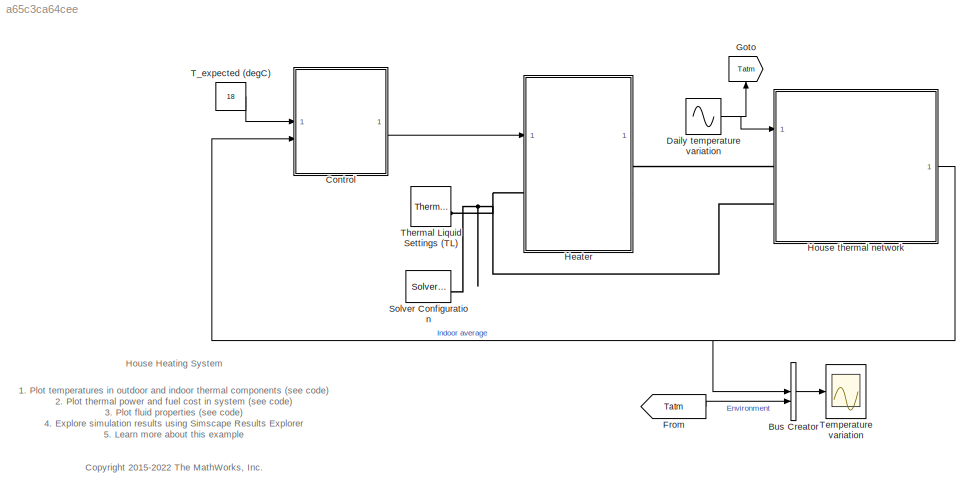
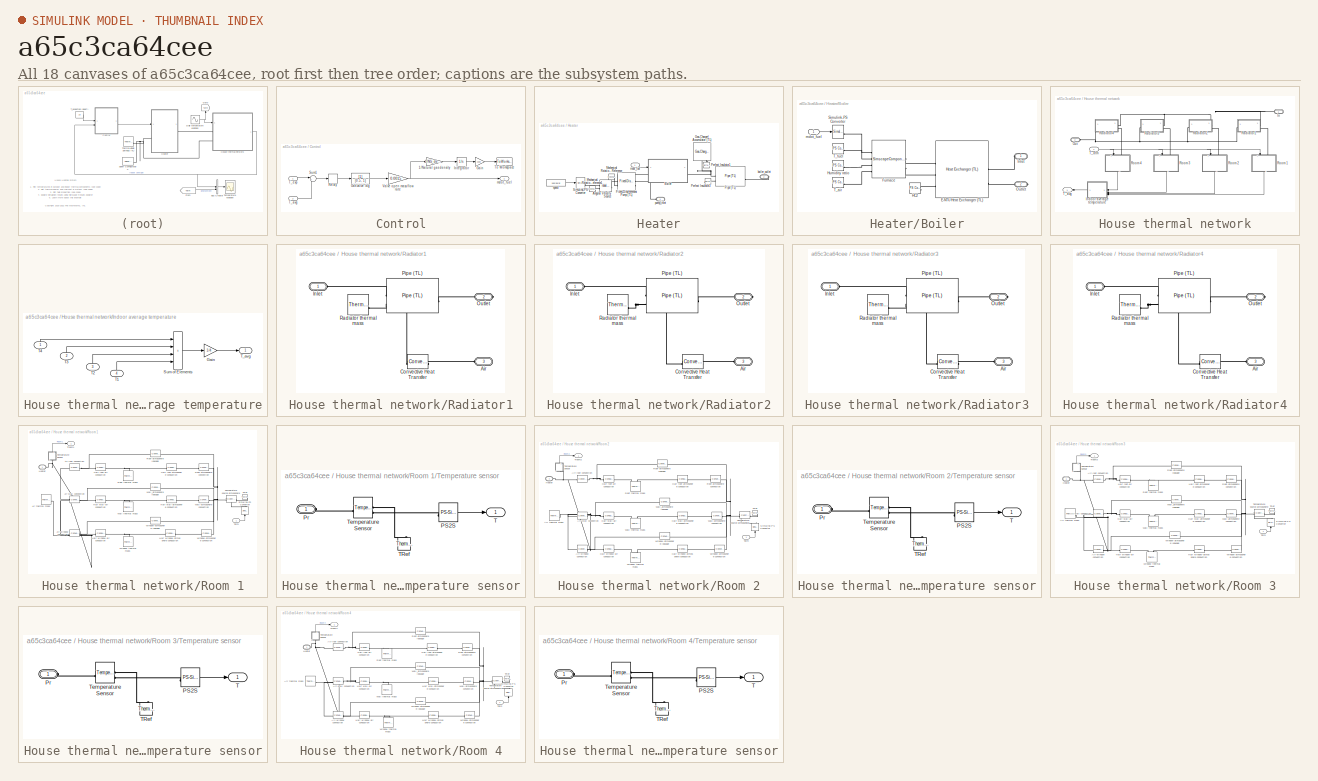
[diagram: thumbnail index - all 18 canvases of the model, root first then tree order]
MODEL slx_a65c3ca64cee
KIND model
CONFIG AbsTol = 1e-3
CONFIG EnableMultiTasking = on
CONFIG FixedStep = 1
CONFIG InitFcn = % Roof\nroofArea =  2* (widHouse/(2*cos(pitRoof))*lenHouse);\n\n%Rooms\n%% Room 1\narea_window_room1 = 3 * 1 *1;\narea_wall_room1 = (lenHouse*3/5 *htHouse+widHouse*2/3*htHouse) - area_window_room1;\narea_roof_room1 = roofArea/4;\n\n%% Room 2\narea_window_room2 = 2 * 1 *1;\narea_wall_room2 = (lenHouse*3/5*htHouse+widHouse/3*htHouse) - area_window_room2;\narea_roof_room2 = roofArea/4;\n\n%% Room 3\narea_window_roo...<+507ch>
CONFIG MaxStep = auto
CONFIG MinStep = auto
CONFIG PreLoadFcn = % Walls\nlenHouse   = 30;          % House length [m]\nwidHouse   = 10;          % House width [m]\nhtHouse     = 4;            % House height [m]\nLWall           = 0.2;         % Wall thickness [m]\nwallDensity = 1920;      % Density [kg/m^3]\nc_wall          = 835;        % Specific heat [J/kg/K]\nkWall            = 0.038;    % Thermal conductivity [W/m/K]\n\n% Windows\nn1_window       = 3;          % Nu...<+1775ch>
CONFIG RelTol = 1e-3
CONFIG SampleTimeConstraint = Unconstrained
CONFIG SolverName = VariableStepAuto
CONFIG StartTime = 0.0
CONFIG StopTime = 3600*50
BLOCK [BusCreator] Bus Creator
  DisplayOption = bar
  InheritFromInputs = on
  Inputs = 2
BLOCK [SubSystem] Control
BLOCK [Gain] Control/1//Natural gas density
  Gain = 1/NG_density
  OutDataTypeStr = Inherit: Same as input
  ParamDataTypeStr = Inherit: Same as input
  SaturateOnIntegerOverflow = on
BLOCK [Gain] Control/Gain
  Gain = cost
BLOCK [TransferFcn] Control/Gas valve lag
  Denominator = [0.5, 1]
BLOCK [Integrator] Control/Integrator
  NameLocation = top
BLOCK [Relay] Control/Relay
  OffSwitchValue = -2
  OnSwitchValue = 2
BLOCK [Sum] Control/Sum1
  Inputs = |+-
  NameLocation = top
BLOCK [Inport] Control/T_avg
  NameLocation = top
  Port = 2
BLOCK [Inport] Control/T_exp
BLOCK [ToWorkspace] Control/To Workspace
  FixptAsFi = on
  MaxDataPoints = inf
  SampleTime = -1
  VariableName = fuel_cost
BLOCK [Gain] Control/Valve open mass flow rate
  Gain = 0.0015
  OutDataTypeStr = Inherit: Same as input
  ParamDataTypeStr = Inherit: Same as input
  SaturateOnIntegerOverflow = on
BLOCK [Outport] Control/mdot_fuel
  VectorParamsAs1DForOutWhenUnconnected = off
BLOCK [Sin] Daily temperature variation
  Amplitude = 6
  Bias = 12
  Frequency = 2*pi/(12*3600)
  SampleTime = 0
BLOCK [From] From
  GotoTag = Tatm
BLOCK [Goto] Goto
  GotoTag = Tatm
  NameLocation = right
BLOCK [SubSystem] Heater
BLOCK [Reference] Heater/Angular Velocity Source  REF=fl_lib/Mechanical/Mechanical Sources/Ideal Angular
Velocity Source
  SourceBlock = fl_lib/Mechanical/Mechanical Sources/Ideal Angular\nVelocity Source
  SourceType = Ideal Angular\nVelocity Source
BLOCK [SubSystem] Heater/Boiler
BLOCK [Reference] Heater/Boiler/E-NTU Heat Exchanger (TL)  REF=SimscapeFluids_lib/Fluid Network
Interfaces/Heat Exchangers/Heat Exchanger (TL)
  SourceBlock = SimscapeFluids_lib/Fluid Network\nInterfaces/Heat Exchangers/Heat Exchanger (TL)
  SourceType = Heat Exchanger (TL)
BLOCK [SimscapeComponentBlock] Heater/Boiler/Furnace
  ClassName = furnace
  ComponentPath = furnace
  ComponentVariantNames = furnace
  ComponentVariants = furnace
  CopyFcn = simscape.engine.sli.internal.componentblockcallback(gcbh,'COPY')
  InternalSimscapePortConfiguration = {"Bottom":[],"Left":[{"id":"Mdot_fuel","label":"MF","type":"input"},{"id":"T_fuel","label":"TF","type":"input"},{"id":"Humid_ratio","label":"HR","type":"input"},{"id":"T_air","label":"TS","type":"input"}],"Right":[{"id":"H","label":"H","type":"foundation.thermal.thermal"},{"id":"C_exh","label":"C_exh","type":"output"}],"Top":[]}
  LHV = 41e6
  LHV_conf = compiletime
  LHV_unit = J/kg
  MaskDisplay = color('red');plot([0 1 1 0 0],[0 0 1 1 0]);plot([0.7,1],[1,0.7]);plot(-2,-1.75);plot(3, 1);disp('\n.ssc\nUnresolved')
  MaskType = Furnace
  PreCopyFcn = simscape.engine.sli.internal.componentblockcallback(gcbh,'PRECOPY')
  PreDeleteFcn = simscape.engine.sli.internal.componentblockcallback(gcbh,'PREDELETE')
  SchemaVersion = 1
  SourceFile = furnace
  cp_air = 1005
  cp_air_conf = compiletime
  cp_air_unit = J/kg/K
  cp_fuel = 1880
  cp_fuel_conf = compiletime
  cp_fuel_unit = J/kg/K
  cp_vapor = 1820
  cp_vapor_conf = compiletime
  cp_vapor_unit = J/kg/K
  excess_air = 0.1
  excess_air_conf = compiletime
  excess_air_unit = 1
  mdot_fuel_min = 1e-5
  mdot_fuel_min_conf = compiletime
  mdot_fuel_min_unit = kg/s
  n = 3.95
  n_conf = compiletime
  n_unit = 1
BLOCK [Reference] Heater/Boiler/HC2  REF=fl_lib/Physical Signals/Sources/PS Constant
  SourceBlock = fl_lib/Physical Signals/Sources/PS Constant
  SourceType = PS Constant
BLOCK [Reference] Heater/Boiler/Humidity ratio  REF=fl_lib/Physical Signals/Sources/PS Constant
  SourceBlock = fl_lib/Physical Signals/Sources/PS Constant
  SourceType = PS Constant
BLOCK [PMIOPort] Heater/Boiler/Inlet
  Side = Left
BLOCK [PMIOPort] Heater/Boiler/Outlet
  Port = 2
  Side = Right
BLOCK [Reference] Heater/Boiler/Simulink-PS Converter  REF=nesl_utility/Simulink-PS
Converter
  SourceBlock = nesl_utility/Simulink-PS\nConverter
  SourceType = Simulink-PS\nConverter
BLOCK [Reference] Heater/Boiler/T_air  REF=fl_lib/Physical Signals/Sources/PS Constant
  SourceBlock = fl_lib/Physical Signals/Sources/PS Constant
  SourceType = PS Constant
BLOCK [Reference] Heater/Boiler/T_fuel  REF=fl_lib/Physical Signals/Sources/PS Constant
  SourceBlock = fl_lib/Physical Signals/Sources/PS Constant
  SourceType = PS Constant
BLOCK [Inport] Heater/Boiler/mdot_fuel
BLOCK [Reference] Heater/Fixed-Displacement Pump (TL)  REF=SimscapeFluids_lib/Thermal Liquid/Pumps & Motors/Fixed-Displacement
Pump (TL)
  SourceBlock = SimscapeFluids_lib/Thermal Liquid/Pumps & Motors/Fixed-Displacement\nPump (TL)
  SourceType = Fixed-Displacement\nPump (TL)
BLOCK [Reference] Heater/Gas-Charged Accumulator (TL)  REF=SimscapeFluids_lib/Thermal Liquid/Tanks & Accumulators/Gas-Charged
Accumulator (TL)
  NameLocation = right
  SourceBlock = SimscapeFluids_lib/Thermal Liquid/Tanks & Accumulators/Gas-Charged\nAccumulator (TL)
  SourceType = Gas-Charged\nAccumulator (TL)
BLOCK [Reference] Heater/Mechanical Rotational Reference  REF=fl_lib/Mechanical/Rotational Elements/Mechanical
Rotational Reference
  SourceBlock = fl_lib/Mechanical/Rotational Elements/Mechanical\nRotational Reference
  SourceType = Mechanical\nRotational Reference
BLOCK [Reference] Heater/Mechanical Rotational Reference1  REF=fl_lib/Mechanical/Rotational Elements/Mechanical
Rotational Reference
  SourceBlock = fl_lib/Mechanical/Rotational Elements/Mechanical\nRotational Reference
  SourceType = Mechanical\nRotational Reference
BLOCK [Reference] Heater/Perfect Insulator1  REF=fl_lib/Thermal/Thermal Elements/Perfect Insulator
  NameLocation = left
  SourceBlock = fl_lib/Thermal/Thermal Elements/Perfect Insulator
  SourceType = Perfect Insulator
BLOCK [Reference] Heater/Perfect Insulator3  REF=fl_lib/Thermal/Thermal Elements/Perfect Insulator
  NameLocation = top
  SourceBlock = fl_lib/Thermal/Thermal Elements/Perfect Insulator
  SourceType = Perfect Insulator
BLOCK [Reference] Heater/Pipe (TL)  REF=SimscapeFluids_lib/Thermal Liquid/Pipes & Fittings/Pipe (TL)
  NameLocation = top
  SourceBlock = SimscapeFluids_lib/Thermal Liquid/Pipes & Fittings/Pipe (TL)
  SourceType = Pipe (TL)
BLOCK [Reference] Heater/Simulink-PS Converter  REF=nesl_utility/Simulink-PS
Converter
  SourceBlock = nesl_utility/Simulink-PS\nConverter
  SourceType = Simulink-PS\nConverter
BLOCK [PMIOPort] Heater/boiler_outlet
  Port = 2
  Side = Right
BLOCK [Inport] Heater/mdot_fuel
BLOCK [PMIOPort] Heater/pump_inlet
  Side = Left
BLOCK [Constant] Heater/speed
  Value = 150*30/pi
BLOCK [SubSystem] House thermal network
BLOCK [PMIOPort] House thermal network/In
  NameLocation = top
  Side = Left
BLOCK [SubSystem] House thermal network/Indoor average temperature
BLOCK [Gain] House thermal network/Indoor average temperature/Gain
  Gain = 1/4
  NameLocation = top
BLOCK [Sum] House thermal network/Indoor average temperature/Sum of Elements
  IconShape = rectangular
  Inputs = ++++
  NameLocation = top
BLOCK [Inport] House thermal network/Indoor average temperature/T1
  NameLocation = right
  Port = 4
BLOCK [Inport] House thermal network/Indoor average temperature/T2
  NameLocation = right
  Port = 3
BLOCK [Inport] House thermal network/Indoor average temperature/T3
  NameLocation = right
  Port = 2
BLOCK [Inport] House thermal network/Indoor average temperature/T4
  NameLocation = right
BLOCK [Outport] House thermal network/Indoor average temperature/T_avg
  NameLocation = top
  VectorParamsAs1DForOutWhenUnconnected = off
BLOCK [PMIOPort] House thermal network/Out
  Port = 2
  Side = Left
BLOCK [SubSystem] House thermal network/Radiator1
BLOCK [PMIOPort] House thermal network/Radiator1/Air
  NameLocation = top
  Port = 3
  Side = Left
BLOCK [Reference] House thermal network/Radiator1/Convective Heat Transfer  REF=fl_lib/Thermal/Thermal Elements/Convective Heat
Transfer
  NameLocation = top
  SourceBlock = fl_lib/Thermal/Thermal Elements/Convective Heat\nTransfer
  SourceType = Convective Heat\nTransfer
BLOCK [PMIOPort] House thermal network/Radiator1/Inlet
  Side = Left
BLOCK [PMIOPort] House thermal network/Radiator1/Outlet
  Port = 2
  Side = Right
BLOCK [Reference] House thermal network/Radiator1/Pipe (TL)  REF=SimscapeFluids_lib/Thermal Liquid/Pipes & Fittings/Pipe (TL)
  SourceBlock = SimscapeFluids_lib/Thermal Liquid/Pipes & Fittings/Pipe (TL)
  SourceType = Pipe (TL)
BLOCK [Reference] House thermal network/Radiator1/Radiator thermal mass  REF=fl_lib/Thermal/Thermal Elements/Thermal Mass
  SourceBlock = fl_lib/Thermal/Thermal Elements/Thermal Mass
  SourceType = Thermal Mass
BLOCK [SubSystem] House thermal network/Radiator2
BLOCK [PMIOPort] House thermal network/Radiator2/Air
  NameLocation = top
  Port = 3
  Side = Left
BLOCK [Reference] House thermal network/Radiator2/Convective Heat Transfer  REF=fl_lib/Thermal/Thermal Elements/Convective Heat
Transfer
  NameLocation = top
  SourceBlock = fl_lib/Thermal/Thermal Elements/Convective Heat\nTransfer
  SourceType = Convective Heat\nTransfer
BLOCK [PMIOPort] House thermal network/Radiator2/Inlet
  Side = Left
BLOCK [PMIOPort] House thermal network/Radiator2/Outlet
  Port = 2
  Side = Right
BLOCK [Reference] House thermal network/Radiator2/Pipe (TL)  REF=SimscapeFluids_lib/Thermal Liquid/Pipes & Fittings/Pipe (TL)
  SourceBlock = SimscapeFluids_lib/Thermal Liquid/Pipes & Fittings/Pipe (TL)
  SourceType = Pipe (TL)
BLOCK [Reference] House thermal network/Radiator2/Radiator thermal mass  REF=fl_lib/Thermal/Thermal Elements/Thermal Mass
  SourceBlock = fl_lib/Thermal/Thermal Elements/Thermal Mass
  SourceType = Thermal Mass
BLOCK [SubSystem] House thermal network/Radiator3
BLOCK [PMIOPort] House thermal network/Radiator3/Air
  NameLocation = top
  Port = 3
  Side = Left
BLOCK [Reference] House thermal network/Radiator3/Convective Heat Transfer  REF=fl_lib/Thermal/Thermal Elements/Convective Heat
Transfer
  NameLocation = top
  SourceBlock = fl_lib/Thermal/Thermal Elements/Convective Heat\nTransfer
  SourceType = Convective Heat\nTransfer
BLOCK [PMIOPort] House thermal network/Radiator3/Inlet
  Side = Left
BLOCK [PMIOPort] House thermal network/Radiator3/Outlet
  Port = 2
  Side = Right
BLOCK [Reference] House thermal network/Radiator3/Pipe (TL)  REF=SimscapeFluids_lib/Thermal Liquid/Pipes & Fittings/Pipe (TL)
  SourceBlock = SimscapeFluids_lib/Thermal Liquid/Pipes & Fittings/Pipe (TL)
  SourceType = Pipe (TL)
BLOCK [Reference] House thermal network/Radiator3/Radiator thermal mass  REF=fl_lib/Thermal/Thermal Elements/Thermal Mass
  SourceBlock = fl_lib/Thermal/Thermal Elements/Thermal Mass
  SourceType = Thermal Mass
BLOCK [SubSystem] House thermal network/Radiator4
BLOCK [PMIOPort] House thermal network/Radiator4/Air
  NameLocation = top
  Port = 3
  Side = Left
BLOCK [Reference] House thermal network/Radiator4/Convective Heat Transfer  REF=fl_lib/Thermal/Thermal Elements/Convective Heat
Transfer
  NameLocation = top
  SourceBlock = fl_lib/Thermal/Thermal Elements/Convective Heat\nTransfer
  SourceType = Convective Heat\nTransfer
BLOCK [PMIOPort] House thermal network/Radiator4/Inlet
  Side = Left
BLOCK [PMIOPort] House thermal network/Radiator4/Outlet
  Port = 2
  Side = Right
BLOCK [Reference] House thermal network/Radiator4/Pipe (TL)  REF=SimscapeFluids_lib/Thermal Liquid/Pipes & Fittings/Pipe (TL)
  SourceBlock = SimscapeFluids_lib/Thermal Liquid/Pipes & Fittings/Pipe (TL)
  SourceType = Pipe (TL)
BLOCK [Reference] House thermal network/Radiator4/Radiator thermal mass  REF=fl_lib/Thermal/Thermal Elements/Thermal Mass
  SourceBlock = fl_lib/Thermal/Thermal Elements/Thermal Mass
  SourceType = Thermal Mass
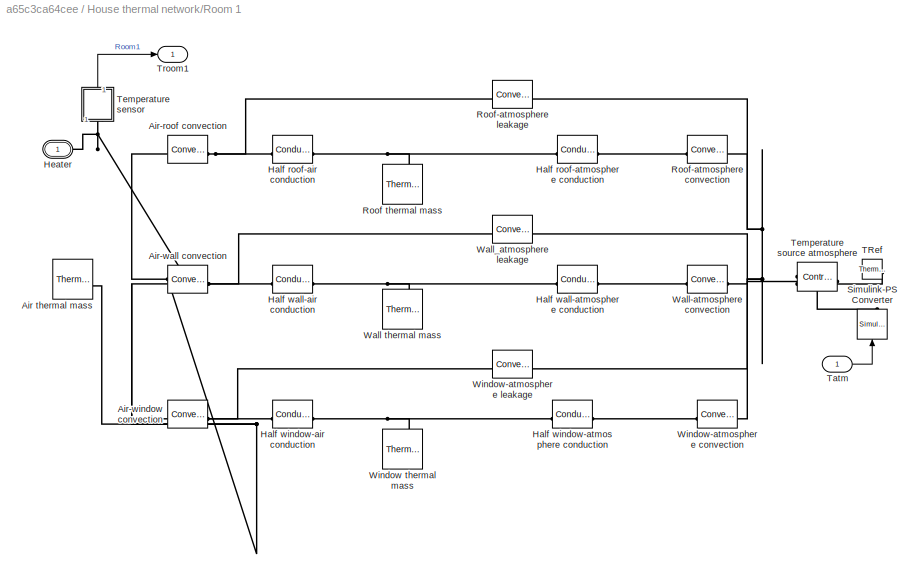
BLOCK [SubSystem] House thermal network/Room 1
  NameLocation = right
  Tag = PublishSubsystem
BLOCK [Reference] House thermal network/Room 1/Air thermal mass  REF=fl_lib/Thermal/Thermal Elements/Thermal Mass
  SourceBlock = fl_lib/Thermal/Thermal Elements/Thermal Mass
  SourceType = Thermal Mass
BLOCK [Reference] House thermal network/Room 1/Air-roof convection  REF=fl_lib/Thermal/Thermal Elements/Convective Heat
Transfer
  SourceBlock = fl_lib/Thermal/Thermal Elements/Convective Heat\nTransfer
  SourceType = Convective Heat\nTransfer
BLOCK [Reference] House thermal network/Room 1/Air-wall convection  REF=fl_lib/Thermal/Thermal Elements/Convective Heat
Transfer
  SourceBlock = fl_lib/Thermal/Thermal Elements/Convective Heat\nTransfer
  SourceType = Convective Heat\nTransfer
BLOCK [Reference] House thermal network/Room 1/Air-window convection  REF=fl_lib/Thermal/Thermal Elements/Convective Heat
Transfer
  SourceBlock = fl_lib/Thermal/Thermal Elements/Convective Heat\nTransfer
  SourceType = Convective Heat\nTransfer
BLOCK [Reference] House thermal network/Room 1/Half roof-air conduction  REF=fl_lib/Thermal/Thermal Elements/Conductive Heat
Transfer
  SourceBlock = fl_lib/Thermal/Thermal Elements/Conductive Heat\nTransfer
  SourceType = Conductive Heat\nTransfer
BLOCK [Reference] House thermal network/Room 1/Half roof-atmosphere conduction  REF=fl_lib/Thermal/Thermal Elements/Conductive Heat
Transfer
  SourceBlock = fl_lib/Thermal/Thermal Elements/Conductive Heat\nTransfer
  SourceType = Conductive Heat\nTransfer
BLOCK [Reference] House thermal network/Room 1/Half wall-air conduction  REF=fl_lib/Thermal/Thermal Elements/Conductive Heat
Transfer
  SourceBlock = fl_lib/Thermal/Thermal Elements/Conductive Heat\nTransfer
  SourceType = Conductive Heat\nTransfer
BLOCK [Reference] House thermal network/Room 1/Half wall-atmosphere conduction  REF=fl_lib/Thermal/Thermal Elements/Conductive Heat
Transfer
  SourceBlock = fl_lib/Thermal/Thermal Elements/Conductive Heat\nTransfer
  SourceType = Conductive Heat\nTransfer
BLOCK [Reference] House thermal network/Room 1/Half window-air conduction  REF=fl_lib/Thermal/Thermal Elements/Conductive Heat
Transfer
  SourceBlock = fl_lib/Thermal/Thermal Elements/Conductive Heat\nTransfer
  SourceType = Conductive Heat\nTransfer
BLOCK [Reference] House thermal network/Room 1/Half window-atmosphere conduction  REF=fl_lib/Thermal/Thermal Elements/Conductive Heat
Transfer
  SourceBlock = fl_lib/Thermal/Thermal Elements/Conductive Heat\nTransfer
  SourceType = Conductive Heat\nTransfer
BLOCK [PMIOPort] House thermal network/Room 1/Heater
  Side = Left
  Tag = PMCPort
BLOCK [Reference] House thermal network/Room 1/Roof thermal mass  REF=fl_lib/Thermal/Thermal Elements/Thermal Mass
  NameLocation = right
  SourceBlock = fl_lib/Thermal/Thermal Elements/Thermal Mass
  SourceType = Thermal Mass
BLOCK [Reference] House thermal network/Room 1/Roof-atmosphere convection  REF=fl_lib/Thermal/Thermal Elements/Convective Heat
Transfer
  SourceBlock = fl_lib/Thermal/Thermal Elements/Convective Heat\nTransfer
  SourceType = Convective Heat\nTransfer
BLOCK [Reference] House thermal network/Room 1/Roof-atmosphere leakage  REF=fl_lib/Thermal/Thermal Elements/Convective Heat
Transfer
  SourceBlock = fl_lib/Thermal/Thermal Elements/Convective Heat\nTransfer
  SourceType = Convective Heat\nTransfer
BLOCK [Reference] House thermal network/Room 1/Simulink-PS Converter  REF=nesl_utility/Simulink-PS
Converter
  NameLocation = left
  SourceBlock = nesl_utility/Simulink-PS\nConverter
  SourceType = Simulink-PS\nConverter
BLOCK [Reference] House thermal network/Room 1/TRef  REF=fl_lib/Thermal/Thermal Elements/Thermal Reference
  NameLocation = top
  SourceBlock = fl_lib/Thermal/Thermal Elements/Thermal Reference
  SourceType = Thermal Reference
BLOCK [Inport] House thermal network/Room 1/Tatm
BLOCK [SubSystem] House thermal network/Room 1/Temperature sensor
  NameLocation = right
BLOCK [Reference] House thermal network/Room 1/Temperature sensor/PS2S  REF=nesl_utility/PS-Simulink
Converter
  SourceBlock = nesl_utility/PS-Simulink\nConverter
  SourceType = PS-Simulink\nConverter
BLOCK [PMIOPort] House thermal network/Room 1/Temperature sensor/Pr
  Side = Left
BLOCK [Outport] House thermal network/Room 1/Temperature sensor/T
  VectorParamsAs1DForOutWhenUnconnected = off
BLOCK [Reference] House thermal network/Room 1/Temperature sensor/TRef  REF=fl_lib/Thermal/Thermal Elements/Thermal Reference
  NameLocation = right
  SourceBlock = fl_lib/Thermal/Thermal Elements/Thermal Reference
  SourceType = Thermal Reference
BLOCK [Reference] House thermal network/Room 1/Temperature sensor/Temperature Sensor  REF=fl_lib/Thermal/Thermal Sensors/Temperature Sensor
  SourceBlock = fl_lib/Thermal/Thermal Sensors/Temperature Sensor
  SourceType = Temperature Sensor
BLOCK [Reference] House thermal network/Room 1/Temperature source atmosphere  REF=fl_lib/Thermal/Thermal Sources/Controlled
Temperature Source
  NameLocation = top
  SourceBlock = fl_lib/Thermal/Thermal Sources/Controlled\nTemperature Source
  SourceType = Controlled\nTemperature Source
BLOCK [Outport] House thermal network/Room 1/Troom1
  VectorParamsAs1DForOutWhenUnconnected = off
BLOCK [Reference] House thermal network/Room 1/Wall thermal mass  REF=fl_lib/Thermal/Thermal Elements/Thermal Mass
  NameLocation = right
  SourceBlock = fl_lib/Thermal/Thermal Elements/Thermal Mass
  SourceType = Thermal Mass
BLOCK [Reference] House thermal network/Room 1/Wall-atmosphere convection  REF=fl_lib/Thermal/Thermal Elements/Convective Heat
Transfer
  SourceBlock = fl_lib/Thermal/Thermal Elements/Convective Heat\nTransfer
  SourceType = Convective Heat\nTransfer
BLOCK [Reference] House thermal network/Room 1/Wall_atmosphere leakage  REF=fl_lib/Thermal/Thermal Elements/Convective Heat
Transfer
  SourceBlock = fl_lib/Thermal/Thermal Elements/Convective Heat\nTransfer
  SourceType = Convective Heat\nTransfer
BLOCK [Reference] House thermal network/Room 1/Window thermal mass  REF=fl_lib/Thermal/Thermal Elements/Thermal Mass
  NameLocation = right
  SourceBlock = fl_lib/Thermal/Thermal Elements/Thermal Mass
  SourceType = Thermal Mass
BLOCK [Reference] House thermal network/Room 1/Window-atmosphere convection  REF=fl_lib/Thermal/Thermal Elements/Convective Heat
Transfer
  SourceBlock = fl_lib/Thermal/Thermal Elements/Convective Heat\nTransfer
  SourceType = Convective Heat\nTransfer
BLOCK [Reference] House thermal network/Room 1/Window-atmosphere leakage  REF=fl_lib/Thermal/Thermal Elements/Convective Heat
Transfer
  SourceBlock = fl_lib/Thermal/Thermal Elements/Convective Heat\nTransfer
  SourceType = Convective Heat\nTransfer
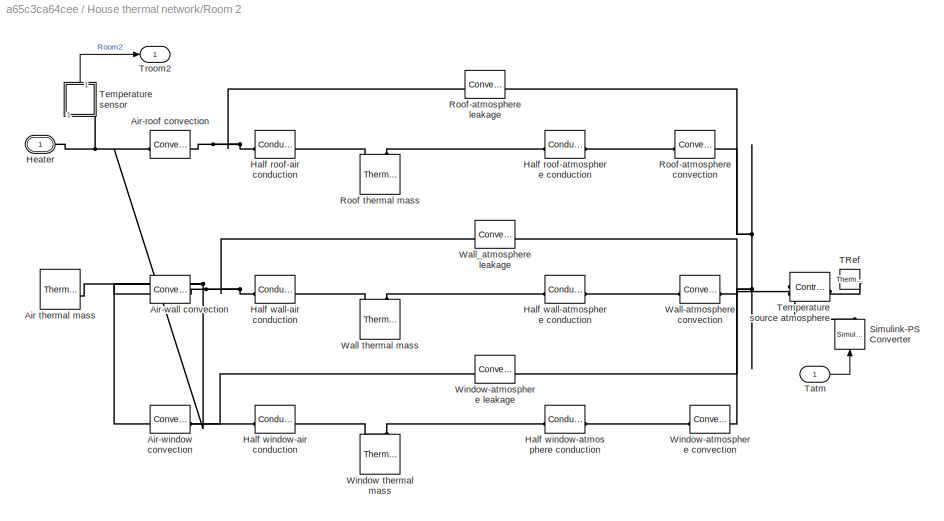
BLOCK [SubSystem] House thermal network/Room 2
  NameLocation = right
  Tag = PublishSubsystem
BLOCK [Reference] House thermal network/Room 2/Air thermal mass  REF=fl_lib/Thermal/Thermal Elements/Thermal Mass
  SourceBlock = fl_lib/Thermal/Thermal Elements/Thermal Mass
  SourceType = Thermal Mass
BLOCK [Reference] House thermal network/Room 2/Air-roof convection  REF=fl_lib/Thermal/Thermal Elements/Convective Heat
Transfer
  SourceBlock = fl_lib/Thermal/Thermal Elements/Convective Heat\nTransfer
  SourceType = Convective Heat\nTransfer
BLOCK [Reference] House thermal network/Room 2/Air-wall convection  REF=fl_lib/Thermal/Thermal Elements/Convective Heat
Transfer
  SourceBlock = fl_lib/Thermal/Thermal Elements/Convective Heat\nTransfer
  SourceType = Convective Heat\nTransfer
BLOCK [Reference] House thermal network/Room 2/Air-window convection  REF=fl_lib/Thermal/Thermal Elements/Convective Heat
Transfer
  SourceBlock = fl_lib/Thermal/Thermal Elements/Convective Heat\nTransfer
  SourceType = Convective Heat\nTransfer
BLOCK [Reference] House thermal network/Room 2/Half roof-air conduction  REF=fl_lib/Thermal/Thermal Elements/Conductive Heat
Transfer
  SourceBlock = fl_lib/Thermal/Thermal Elements/Conductive Heat\nTransfer
  SourceType = Conductive Heat\nTransfer
BLOCK [Reference] House thermal network/Room 2/Half roof-atmosphere conduction  REF=fl_lib/Thermal/Thermal Elements/Conductive Heat
Transfer
  SourceBlock = fl_lib/Thermal/Thermal Elements/Conductive Heat\nTransfer
  SourceType = Conductive Heat\nTransfer
BLOCK [Reference] House thermal network/Room 2/Half wall-air conduction  REF=fl_lib/Thermal/Thermal Elements/Conductive Heat
Transfer
  SourceBlock = fl_lib/Thermal/Thermal Elements/Conductive Heat\nTransfer
  SourceType = Conductive Heat\nTransfer
BLOCK [Reference] House thermal network/Room 2/Half wall-atmosphere conduction  REF=fl_lib/Thermal/Thermal Elements/Conductive Heat
Transfer
  SourceBlock = fl_lib/Thermal/Thermal Elements/Conductive Heat\nTransfer
  SourceType = Conductive Heat\nTransfer
BLOCK [Reference] House thermal network/Room 2/Half window-air conduction  REF=fl_lib/Thermal/Thermal Elements/Conductive Heat
Transfer
  SourceBlock = fl_lib/Thermal/Thermal Elements/Conductive Heat\nTransfer
  SourceType = Conductive Heat\nTransfer
BLOCK [Reference] House thermal network/Room 2/Half window-atmosphere conduction  REF=fl_lib/Thermal/Thermal Elements/Conductive Heat
Transfer
  SourceBlock = fl_lib/Thermal/Thermal Elements/Conductive Heat\nTransfer
  SourceType = Conductive Heat\nTransfer
BLOCK [PMIOPort] House thermal network/Room 2/Heater
  Side = Left
  Tag = PMCPort
BLOCK [Reference] House thermal network/Room 2/Roof thermal mass  REF=fl_lib/Thermal/Thermal Elements/Thermal Mass
  NameLocation = right
  SourceBlock = fl_lib/Thermal/Thermal Elements/Thermal Mass
  SourceType = Thermal Mass
BLOCK [Reference] House thermal network/Room 2/Roof-atmosphere convection  REF=fl_lib/Thermal/Thermal Elements/Convective Heat
Transfer
  SourceBlock = fl_lib/Thermal/Thermal Elements/Convective Heat\nTransfer
  SourceType = Convective Heat\nTransfer
BLOCK [Reference] House thermal network/Room 2/Roof-atmosphere leakage  REF=fl_lib/Thermal/Thermal Elements/Convective Heat
Transfer
  SourceBlock = fl_lib/Thermal/Thermal Elements/Convective Heat\nTransfer
  SourceType = Convective Heat\nTransfer
BLOCK [Reference] House thermal network/Room 2/Simulink-PS Converter  REF=nesl_utility/Simulink-PS
Converter
  NameLocation = left
  SourceBlock = nesl_utility/Simulink-PS\nConverter
  SourceType = Simulink-PS\nConverter
BLOCK [Reference] House thermal network/Room 2/TRef  REF=fl_lib/Thermal/Thermal Elements/Thermal Reference
  NameLocation = top
  SourceBlock = fl_lib/Thermal/Thermal Elements/Thermal Reference
  SourceType = Thermal Reference
BLOCK [Inport] House thermal network/Room 2/Tatm
BLOCK [SubSystem] House thermal network/Room 2/Temperature sensor
  NameLocation = right
BLOCK [Reference] House thermal network/Room 2/Temperature sensor/PS2S  REF=nesl_utility/PS-Simulink
Converter
  SourceBlock = nesl_utility/PS-Simulink\nConverter
  SourceType = PS-Simulink\nConverter
BLOCK [PMIOPort] House thermal network/Room 2/Temperature sensor/Pr
  Side = Left
BLOCK [Outport] House thermal network/Room 2/Temperature sensor/T
  VectorParamsAs1DForOutWhenUnconnected = off
BLOCK [Reference] House thermal network/Room 2/Temperature sensor/TRef  REF=fl_lib/Thermal/Thermal Elements/Thermal Reference
  NameLocation = right
  SourceBlock = fl_lib/Thermal/Thermal Elements/Thermal Reference
  SourceType = Thermal Reference
BLOCK [Reference] House thermal network/Room 2/Temperature sensor/Temperature Sensor  REF=fl_lib/Thermal/Thermal Sensors/Temperature Sensor
  SourceBlock = fl_lib/Thermal/Thermal Sensors/Temperature Sensor
  SourceType = Temperature Sensor
BLOCK [Reference] House thermal network/Room 2/Temperature source atmosphere  REF=fl_lib/Thermal/Thermal Sources/Controlled
Temperature Source
  NameLocation = top
  SourceBlock = fl_lib/Thermal/Thermal Sources/Controlled\nTemperature Source
  SourceType = Controlled\nTemperature Source
BLOCK [Outport] House thermal network/Room 2/Troom2
  VectorParamsAs1DForOutWhenUnconnected = off
BLOCK [Reference] House thermal network/Room 2/Wall thermal mass  REF=fl_lib/Thermal/Thermal Elements/Thermal Mass
  NameLocation = right
  SourceBlock = fl_lib/Thermal/Thermal Elements/Thermal Mass
  SourceType = Thermal Mass
BLOCK [Reference] House thermal network/Room 2/Wall-atmosphere convection  REF=fl_lib/Thermal/Thermal Elements/Convective Heat
Transfer
  SourceBlock = fl_lib/Thermal/Thermal Elements/Convective Heat\nTransfer
  SourceType = Convective Heat\nTransfer
BLOCK [Reference] House thermal network/Room 2/Wall_atmosphere leakage  REF=fl_lib/Thermal/Thermal Elements/Convective Heat
Transfer
  SourceBlock = fl_lib/Thermal/Thermal Elements/Convective Heat\nTransfer
  SourceType = Convective Heat\nTransfer
BLOCK [Reference] House thermal network/Room 2/Window thermal mass  REF=fl_lib/Thermal/Thermal Elements/Thermal Mass
  NameLocation = right
  SourceBlock = fl_lib/Thermal/Thermal Elements/Thermal Mass
  SourceType = Thermal Mass
BLOCK [Reference] House thermal network/Room 2/Window-atmosphere convection  REF=fl_lib/Thermal/Thermal Elements/Convective Heat
Transfer
  SourceBlock = fl_lib/Thermal/Thermal Elements/Convective Heat\nTransfer
  SourceType = Convective Heat\nTransfer
BLOCK [Reference] House thermal network/Room 2/Window-atmosphere leakage  REF=fl_lib/Thermal/Thermal Elements/Convective Heat
Transfer
  SourceBlock = fl_lib/Thermal/Thermal Elements/Convective Heat\nTransfer
  SourceType = Convective Heat\nTransfer
BLOCK [SubSystem] House thermal network/Room 3
  NameLocation = right
  Tag = PublishSubsystem
BLOCK [Reference] House thermal network/Room 3/Air thermal mass  REF=fl_lib/Thermal/Thermal Elements/Thermal Mass
  SourceBlock = fl_lib/Thermal/Thermal Elements/Thermal Mass
  SourceType = Thermal Mass
BLOCK [Reference] House thermal network/Room 3/Air-roof convection  REF=fl_lib/Thermal/Thermal Elements/Convective Heat
Transfer
  SourceBlock = fl_lib/Thermal/Thermal Elements/Convective Heat\nTransfer
  SourceType = Convective Heat\nTransfer
BLOCK [Reference] House thermal network/Room 3/Air-wall convection  REF=fl_lib/Thermal/Thermal Elements/Convective Heat
Transfer
  SourceBlock = fl_lib/Thermal/Thermal Elements/Convective Heat\nTransfer
  SourceType = Convective Heat\nTransfer
BLOCK [Reference] House thermal network/Room 3/Air-window convection  REF=fl_lib/Thermal/Thermal Elements/Convective Heat
Transfer
  SourceBlock = fl_lib/Thermal/Thermal Elements/Convective Heat\nTransfer
  SourceType = Convective Heat\nTransfer
BLOCK [Reference] House thermal network/Room 3/Half roof-air conduction  REF=fl_lib/Thermal/Thermal Elements/Conductive Heat
Transfer
  SourceBlock = fl_lib/Thermal/Thermal Elements/Conductive Heat\nTransfer
  SourceType = Conductive Heat\nTransfer
BLOCK [Reference] House thermal network/Room 3/Half roof-atmosphere conduction  REF=fl_lib/Thermal/Thermal Elements/Conductive Heat
Transfer
  SourceBlock = fl_lib/Thermal/Thermal Elements/Conductive Heat\nTransfer
  SourceType = Conductive Heat\nTransfer
BLOCK [Reference] House thermal network/Room 3/Half wall-air conduction  REF=fl_lib/Thermal/Thermal Elements/Conductive Heat
Transfer
  SourceBlock = fl_lib/Thermal/Thermal Elements/Conductive Heat\nTransfer
  SourceType = Conductive Heat\nTransfer
BLOCK [Reference] House thermal network/Room 3/Half wall-atmosphere conduction  REF=fl_lib/Thermal/Thermal Elements/Conductive Heat
Transfer
  SourceBlock = fl_lib/Thermal/Thermal Elements/Conductive Heat\nTransfer
  SourceType = Conductive Heat\nTransfer
BLOCK [Reference] House thermal network/Room 3/Half window-air conduction  REF=fl_lib/Thermal/Thermal Elements/Conductive Heat
Transfer
  SourceBlock = fl_lib/Thermal/Thermal Elements/Conductive Heat\nTransfer
  SourceType = Conductive Heat\nTransfer
BLOCK [Reference] House thermal network/Room 3/Half window-atmosphere conduction  REF=fl_lib/Thermal/Thermal Elements/Conductive Heat
Transfer
  SourceBlock = fl_lib/Thermal/Thermal Elements/Conductive Heat\nTransfer
  SourceType = Conductive Heat\nTransfer
BLOCK [PMIOPort] House thermal network/Room 3/Heater
  Side = Left
  Tag = PMCPort
BLOCK [Reference] House thermal network/Room 3/Roof thermal mass  REF=fl_lib/Thermal/Thermal Elements/Thermal Mass
  NameLocation = right
  SourceBlock = fl_lib/Thermal/Thermal Elements/Thermal Mass
  SourceType = Thermal Mass
BLOCK [Reference] House thermal network/Room 3/Roof-atmosphere convection  REF=fl_lib/Thermal/Thermal Elements/Convective Heat
Transfer
  SourceBlock = fl_lib/Thermal/Thermal Elements/Convective Heat\nTransfer
  SourceType = Convective Heat\nTransfer
BLOCK [Reference] House thermal network/Room 3/Roof-atmosphere leakage  REF=fl_lib/Thermal/Thermal Elements/Convective Heat
Transfer
  SourceBlock = fl_lib/Thermal/Thermal Elements/Convective Heat\nTransfer
  SourceType = Convective Heat\nTransfer
BLOCK [Reference] House thermal network/Room 3/Simulink-PS Converter  REF=nesl_utility/Simulink-PS
Converter
  NameLocation = left
  SourceBlock = nesl_utility/Simulink-PS\nConverter
  SourceType = Simulink-PS\nConverter
BLOCK [Reference] House thermal network/Room 3/TRef  REF=fl_lib/Thermal/Thermal Elements/Thermal Reference
  NameLocation = top
  SourceBlock = fl_lib/Thermal/Thermal Elements/Thermal Reference
  SourceType = Thermal Reference
BLOCK [Inport] House thermal network/Room 3/Tatm
BLOCK [SubSystem] House thermal network/Room 3/Temperature sensor
  NameLocation = right
BLOCK [Reference] House thermal network/Room 3/Temperature sensor/PS2S  REF=nesl_utility/PS-Simulink
Converter
  SourceBlock = nesl_utility/PS-Simulink\nConverter
  SourceType = PS-Simulink\nConverter
BLOCK [PMIOPort] House thermal network/Room 3/Temperature sensor/Pr
  Side = Left
BLOCK [Outport] House thermal network/Room 3/Temperature sensor/T
  VectorParamsAs1DForOutWhenUnconnected = off
BLOCK [Reference] House thermal network/Room 3/Temperature sensor/TRef  REF=fl_lib/Thermal/Thermal Elements/Thermal Reference
  NameLocation = right
  SourceBlock = fl_lib/Thermal/Thermal Elements/Thermal Reference
  SourceType = Thermal Reference
BLOCK [Reference] House thermal network/Room 3/Temperature sensor/Temperature Sensor  REF=fl_lib/Thermal/Thermal Sensors/Temperature Sensor
  SourceBlock = fl_lib/Thermal/Thermal Sensors/Temperature Sensor
  SourceType = Temperature Sensor
BLOCK [Reference] House thermal network/Room 3/Temperature source atmosphere  REF=fl_lib/Thermal/Thermal Sources/Controlled
Temperature Source
  NameLocation = top
  SourceBlock = fl_lib/Thermal/Thermal Sources/Controlled\nTemperature Source
  SourceType = Controlled\nTemperature Source
BLOCK [Outport] House thermal network/Room 3/Troom3
  VectorParamsAs1DForOutWhenUnconnected = off
BLOCK [Reference] House thermal network/Room 3/Wall thermal mass  REF=fl_lib/Thermal/Thermal Elements/Thermal Mass
  NameLocation = right
  SourceBlock = fl_lib/Thermal/Thermal Elements/Thermal Mass
  SourceType = Thermal Mass
BLOCK [Reference] House thermal network/Room 3/Wall-atmosphere convection  REF=fl_lib/Thermal/Thermal Elements/Convective Heat
Transfer
  SourceBlock = fl_lib/Thermal/Thermal Elements/Convective Heat\nTransfer
  SourceType = Convective Heat\nTransfer
BLOCK [Reference] House thermal network/Room 3/Wall_atmosphere leakage  REF=fl_lib/Thermal/Thermal Elements/Convective Heat
Transfer
  SourceBlock = fl_lib/Thermal/Thermal Elements/Convective Heat\nTransfer
  SourceType = Convective Heat\nTransfer
BLOCK [Reference] House thermal network/Room 3/Window thermal mass  REF=fl_lib/Thermal/Thermal Elements/Thermal Mass
  NameLocation = right
  SourceBlock = fl_lib/Thermal/Thermal Elements/Thermal Mass
  SourceType = Thermal Mass
BLOCK [Reference] House thermal network/Room 3/Window-atmosphere convection  REF=fl_lib/Thermal/Thermal Elements/Convective Heat
Transfer
  SourceBlock = fl_lib/Thermal/Thermal Elements/Convective Heat\nTransfer
  SourceType = Convective Heat\nTransfer
BLOCK [Reference] House thermal network/Room 3/Window-atmosphere leakage  REF=fl_lib/Thermal/Thermal Elements/Convective Heat
Transfer
  SourceBlock = fl_lib/Thermal/Thermal Elements/Convective Heat\nTransfer
  SourceType = Convective Heat\nTransfer
BLOCK [SubSystem] House thermal network/Room 4
  NameLocation = right
  Tag = PublishSubsystem
BLOCK [Reference] House thermal network/Room 4/Air thermal mass  REF=fl_lib/Thermal/Thermal Elements/Thermal Mass
  SourceBlock = fl_lib/Thermal/Thermal Elements/Thermal Mass
  SourceType = Thermal Mass
BLOCK [Reference] House thermal network/Room 4/Air-roof convection  REF=fl_lib/Thermal/Thermal Elements/Convective Heat
Transfer
  SourceBlock = fl_lib/Thermal/Thermal Elements/Convective Heat\nTransfer
  SourceType = Convective Heat\nTransfer
BLOCK [Reference] House thermal network/Room 4/Air-wall convection  REF=fl_lib/Thermal/Thermal Elements/Convective Heat
Transfer
  SourceBlock = fl_lib/Thermal/Thermal Elements/Convective Heat\nTransfer
  SourceType = Convective Heat\nTransfer
BLOCK [Reference] House thermal network/Room 4/Air-window convection  REF=fl_lib/Thermal/Thermal Elements/Convective Heat
Transfer
  SourceBlock = fl_lib/Thermal/Thermal Elements/Convective Heat\nTransfer
  SourceType = Convective Heat\nTransfer
BLOCK [Reference] House thermal network/Room 4/Half roof-air conduction  REF=fl_lib/Thermal/Thermal Elements/Conductive Heat
Transfer
  SourceBlock = fl_lib/Thermal/Thermal Elements/Conductive Heat\nTransfer
  SourceType = Conductive Heat\nTransfer
BLOCK [Reference] House thermal network/Room 4/Half roof-atmosphere conduction  REF=fl_lib/Thermal/Thermal Elements/Conductive Heat
Transfer
  SourceBlock = fl_lib/Thermal/Thermal Elements/Conductive Heat\nTransfer
  SourceType = Conductive Heat\nTransfer
BLOCK [Reference] House thermal network/Room 4/Half wall-air conduction  REF=fl_lib/Thermal/Thermal Elements/Conductive Heat
Transfer
  SourceBlock = fl_lib/Thermal/Thermal Elements/Conductive Heat\nTransfer
  SourceType = Conductive Heat\nTransfer
BLOCK [Reference] House thermal network/Room 4/Half wall-atmosphere conduction  REF=fl_lib/Thermal/Thermal Elements/Conductive Heat
Transfer
  SourceBlock = fl_lib/Thermal/Thermal Elements/Conductive Heat\nTransfer
  SourceType = Conductive Heat\nTransfer
BLOCK [Reference] House thermal network/Room 4/Half window-air conduction  REF=fl_lib/Thermal/Thermal Elements/Conductive Heat
Transfer
  SourceBlock = fl_lib/Thermal/Thermal Elements/Conductive Heat\nTransfer
  SourceType = Conductive Heat\nTransfer
BLOCK [Reference] House thermal network/Room 4/Half window-atmosphere conduction  REF=fl_lib/Thermal/Thermal Elements/Conductive Heat
Transfer
  SourceBlock = fl_lib/Thermal/Thermal Elements/Conductive Heat\nTransfer
  SourceType = Conductive Heat\nTransfer
BLOCK [PMIOPort] House thermal network/Room 4/Heater
  Side = Left
  Tag = PMCPort
BLOCK [Reference] House thermal network/Room 4/Roof thermal mass  REF=fl_lib/Thermal/Thermal Elements/Thermal Mass
  NameLocation = right
  SourceBlock = fl_lib/Thermal/Thermal Elements/Thermal Mass
  SourceType = Thermal Mass
BLOCK [Reference] House thermal network/Room 4/Roof-atmosphere convection  REF=fl_lib/Thermal/Thermal Elements/Convective Heat
Transfer
  SourceBlock = fl_lib/Thermal/Thermal Elements/Convective Heat\nTransfer
  SourceType = Convective Heat\nTransfer
BLOCK [Reference] House thermal network/Room 4/Roof-atmosphere leakage  REF=fl_lib/Thermal/Thermal Elements/Convective Heat
Transfer
  SourceBlock = fl_lib/Thermal/Thermal Elements/Convective Heat\nTransfer
  SourceType = Convective Heat\nTransfer
BLOCK [Reference] House thermal network/Room 4/Simulink-PS Converter  REF=nesl_utility/Simulink-PS
Converter
  NameLocation = left
  SourceBlock = nesl_utility/Simulink-PS\nConverter
  SourceType = Simulink-PS\nConverter
BLOCK [Reference] House thermal network/Room 4/TRef  REF=fl_lib/Thermal/Thermal Elements/Thermal Reference
  NameLocation = top
  SourceBlock = fl_lib/Thermal/Thermal Elements/Thermal Reference
  SourceType = Thermal Reference
BLOCK [Inport] House thermal network/Room 4/Tatm
BLOCK [SubSystem] House thermal network/Room 4/Temperature sensor
  NameLocation = right
BLOCK [Reference] House thermal network/Room 4/Temperature sensor/PS2S  REF=nesl_utility/PS-Simulink
Converter
  SourceBlock = nesl_utility/PS-Simulink\nConverter
  SourceType = PS-Simulink\nConverter
BLOCK [PMIOPort] House thermal network/Room 4/Temperature sensor/Pr
  Side = Left
BLOCK [Outport] House thermal network/Room 4/Temperature sensor/T
  VectorParamsAs1DForOutWhenUnconnected = off
BLOCK [Reference] House thermal network/Room 4/Temperature sensor/TRef  REF=fl_lib/Thermal/Thermal Elements/Thermal Reference
  NameLocation = right
  SourceBlock = fl_lib/Thermal/Thermal Elements/Thermal Reference
  SourceType = Thermal Reference
BLOCK [Reference] House thermal network/Room 4/Temperature sensor/Temperature Sensor  REF=fl_lib/Thermal/Thermal Sensors/Temperature Sensor
  SourceBlock = fl_lib/Thermal/Thermal Sensors/Temperature Sensor
  SourceType = Temperature Sensor
BLOCK [Reference] House thermal network/Room 4/Temperature source atmosphere  REF=fl_lib/Thermal/Thermal Sources/Controlled
Temperature Source
  NameLocation = top
  SourceBlock = fl_lib/Thermal/Thermal Sources/Controlled\nTemperature Source
  SourceType = Controlled\nTemperature Source
BLOCK [Outport] House thermal network/Room 4/Troom4
  VectorParamsAs1DForOutWhenUnconnected = off
BLOCK [Reference] House thermal network/Room 4/Wall thermal mass  REF=fl_lib/Thermal/Thermal Elements/Thermal Mass
  NameLocation = right
  SourceBlock = fl_lib/Thermal/Thermal Elements/Thermal Mass
  SourceType = Thermal Mass
BLOCK [Reference] House thermal network/Room 4/Wall-atmosphere convection  REF=fl_lib/Thermal/Thermal Elements/Convective Heat
Transfer
  SourceBlock = fl_lib/Thermal/Thermal Elements/Convective Heat\nTransfer
  SourceType = Convective Heat\nTransfer
BLOCK [Reference] House thermal network/Room 4/Wall_atmosphere leakage  REF=fl_lib/Thermal/Thermal Elements/Convective Heat
Transfer
  SourceBlock = fl_lib/Thermal/Thermal Elements/Convective Heat\nTransfer
  SourceType = Convective Heat\nTransfer
BLOCK [Reference] House thermal network/Room 4/Window thermal mass  REF=fl_lib/Thermal/Thermal Elements/Thermal Mass
  NameLocation = right
  SourceBlock = fl_lib/Thermal/Thermal Elements/Thermal Mass
  SourceType = Thermal Mass
BLOCK [Reference] House thermal network/Room 4/Window-atmosphere convection  REF=fl_lib/Thermal/Thermal Elements/Convective Heat
Transfer
  SourceBlock = fl_lib/Thermal/Thermal Elements/Convective Heat\nTransfer
  SourceType = Convective Heat\nTransfer
BLOCK [Reference] House thermal network/Room 4/Window-atmosphere leakage  REF=fl_lib/Thermal/Thermal Elements/Convective Heat
Transfer
  SourceBlock = fl_lib/Thermal/Thermal Elements/Convective Heat\nTransfer
  SourceType = Convective Heat\nTransfer
BLOCK [Inport] House thermal network/T_atm
BLOCK [Outport] House thermal network/T_avg
  VectorParamsAs1DForOutWhenUnconnected = off
BLOCK [Reference] Solver Configuration  REF=nesl_utility/Solver
Configuration
  SourceBlock = nesl_utility/Solver\nConfiguration
  SourceType = Solver\nConfiguration
BLOCK [Constant] T_expected (degC)
  Value = 18
BLOCK [Scope] Temperature variation
  Floating = off
  NumInputPorts = 1
  ScopeSpecificationString = Simulink.scopes.TimeScopeBlockCfg('CurrentConfiguration', extmgr.ConfigurationSet(extmgr.Configuration('Core','General UI',true),extmgr.Configuration('Core','Source UI',true),extmgr.Configuration('Sources','WiredSimulink',true,'DataLoggingVariableName','ScopeData2'),extmgr.Configuration('Visuals','Time Domain',true,'SerializedDisplays',{struct('MinYLimReal','-4.28134','MaxYLimReal','28.53245','YLa...<+1571ch>
BLOCK [Reference] Thermal Liquid Settings (TL)  REF=fl_lib/Thermal Liquid/Utilities/Thermal Liquid
Settings (TL)
  SourceBlock = fl_lib/Thermal Liquid/Utilities/Thermal Liquid\nSettings (TL)
  SourceType = Thermal Liquid\nSettings (TL)
ANNOTATION (root): 1. Plot temperatures in outdoor and indoor thermal components ( see code ) 2. Plot thermal power and fuel cost in system ( see code ) 3. Plot fluid properties ( see code ) 4. Explore simulation results using Simscape Results Explorer 5. Learn more about this example
ANNOTATION (root): <copyright redacted>
ANNOTATION (root): House Heating System
LINE Bus Creator:1 -> Temperature variation:1
LINE Control/1//Natural gas density:1 -> Control/Integrator:1
LINE Control/Gain:1 -> Control/To Workspace:1
LINE Control/Gas valve lag:1 -> Control/Valve open mass flow rate:1
LINE Control/Integrator:1 -> Control/Gain:1
LINE Control/Relay:1 -> Control/Gas valve lag:1
LINE Control/Sum1:1 -> Control/Relay:1
LINE Control/T_avg:1 -> Control/Sum1:2
LINE Control/T_exp:1 -> Control/Sum1:1
NET Control/Valve open mass flow rate:1 -> Control/1//Natural gas density:1, Control/mdot_fuel:1
LINE Control:1 -> Heater:1
NET Daily temperature variation:1 -> Goto:1, House thermal network:1
LINE From:1 -> Bus Creator:2
LINE Heater/Boiler/mdot_fuel:1 -> Heater/Boiler/Simulink-PS Converter:1
LINE Heater/mdot_fuel:1 -> Heater/Boiler:1
LINE Heater/speed:1 -> Heater/Simulink-PS Converter:1
LINE House thermal network/Indoor average temperature/Gain:1 -> House thermal network/Indoor average temperature/T_avg:1
LINE House thermal network/Indoor average temperature/Sum of Elements:1 -> House thermal network/Indoor average temperature/Gain:1
LINE House thermal network/Indoor average temperature/T1:1 -> House thermal network/Indoor average temperature/Sum of Elements:4
LINE House thermal network/Indoor average temperature/T2:1 -> House thermal network/Indoor average temperature/Sum of Elements:3
LINE House thermal network/Indoor average temperature/T3:1 -> House thermal network/Indoor average temperature/Sum of Elements:2
LINE House thermal network/Indoor average temperature/T4:1 -> House thermal network/Indoor average temperature/Sum of Elements:1
LINE House thermal network/Indoor average temperature:1 -> House thermal network/T_avg:1
LINE House thermal network/Room 1/Tatm:1 -> House thermal network/Room 1/Simulink-PS Converter:1
LINE House thermal network/Room 1/Temperature sensor/PS2S:1 -> House thermal network/Room 1/Temperature sensor/T:1
LINE House thermal network/Room 1/Temperature sensor:1 -> House thermal network/Room 1/Troom1:1
LINE House thermal network/Room 1:1 -> House thermal network/Indoor average temperature:4
LINE House thermal network/Room 2/Tatm:1 -> House thermal network/Room 2/Simulink-PS Converter:1
LINE House thermal network/Room 2/Temperature sensor/PS2S:1 -> House thermal network/Room 2/Temperature sensor/T:1
LINE House thermal network/Room 2/Temperature sensor:1 -> House thermal network/Room 2/Troom2:1
LINE House thermal network/Room 2:1 -> House thermal network/Indoor average temperature:3
LINE House thermal network/Room 3/Tatm:1 -> House thermal network/Room 3/Simulink-PS Converter:1
LINE House thermal network/Room 3/Temperature sensor/PS2S:1 -> House thermal network/Room 3/Temperature sensor/T:1
LINE House thermal network/Room 3/Temperature sensor:1 -> House thermal network/Room 3/Troom3:1
LINE House thermal network/Room 3:1 -> House thermal network/Indoor average temperature:2
LINE House thermal network/Room 4/Tatm:1 -> House thermal network/Room 4/Simulink-PS Converter:1
LINE House thermal network/Room 4/Temperature sensor/PS2S:1 -> House thermal network/Room 4/Temperature sensor/T:1
LINE House thermal network/Room 4/Temperature sensor:1 -> House thermal network/Room 4/Troom4:1
LINE House thermal network/Room 4:1 -> House thermal network/Indoor average temperature:1
NET House thermal network/T_atm:1 -> House thermal network/Room 1:1, House thermal network/Room 2:1, House thermal network/Room 3:1, House thermal network/Room 4:1
NET House thermal network:1 -> Bus Creator:1, Control:2
LINE T_expected (degC):1 -> Control:1
PLINE Heater/Angular Velocity Source:LConn1 -- Heater/Fixed-Displacement Pump (TL):RConn1
PLINE Heater/Angular Velocity Source:RConn1 -- Heater/Simulink-PS Converter:RConn1
PLINE Heater/Angular Velocity Source:RConn2 -- Heater/Mechanical Rotational Reference1:LConn1
PLINE Heater/Boiler/E-NTU Heat Exchanger (TL):LConn1 -- Heater/Boiler/Inlet:RConn1
PLINE Heater/Boiler/E-NTU Heat Exchanger (TL):LConn2 -- Heater/Boiler/Outlet:RConn1
PLINE Heater/Boiler/E-NTU Heat Exchanger (TL):RConn1 -- Heater/Boiler/Furnace:RConn1
PLINE Heater/Boiler/E-NTU Heat Exchanger (TL):RConn2 -- Heater/Boiler/Furnace:RConn2
PLINE Heater/Boiler/E-NTU Heat Exchanger (TL):RConn3 -- Heater/Boiler/HC2:RConn1
PLINE Heater/Boiler/Furnace:LConn1 -- Heater/Boiler/Simulink-PS Converter:RConn1
PLINE Heater/Boiler/Furnace:LConn2 -- Heater/Boiler/T_fuel:RConn1
PLINE Heater/Boiler/Furnace:LConn3 -- Heater/Boiler/Humidity ratio:RConn1
PLINE Heater/Boiler/Furnace:LConn4 -- Heater/Boiler/T_air:RConn1
PLINE Heater/Boiler:LConn1 -- Heater/Fixed-Displacement Pump (TL):LConn2
PNET net1: Heater/Boiler:RConn1 -- Heater/Gas-Charged Accumulator (TL):RConn1 -- Heater/Pipe (TL):LConn1
PLINE Heater/Fixed-Displacement Pump (TL):LConn1 -- Heater/pump_inlet:RConn1
PLINE Heater/Fixed-Displacement Pump (TL):RConn2 -- Heater/Mechanical Rotational Reference:LConn1
PLINE Heater/Gas-Charged Accumulator (TL):RConn2 -- Heater/Perfect Insulator1:LConn1
PLINE Heater/Perfect Insulator3:LConn1 -- Heater/Pipe (TL):LConn2
PLINE Heater/Pipe (TL):RConn1 -- Heater/boiler_outlet:RConn1
PNET net2: Heater:LConn1 -- House thermal network:LConn2 -- Solver Configuration:RConn1 -- Thermal Liquid Settings (TL):RConn1
PLINE Heater:RConn1 -- House thermal network:LConn1
PNET net3: House thermal network/In:RConn1 -- House thermal network/Radiator1:LConn1 -- House thermal network/Radiator2:LConn1 -- House thermal network/Radiator3:LConn1 -- House thermal network/Radiator4:LConn1
PNET net4: House thermal network/Out:RConn1 -- House thermal network/Radiator1:RConn1 -- House thermal network/Radiator2:RConn1 -- House thermal network/Radiator3:RConn1 -- House thermal network/Radiator4:RConn1
PLINE House thermal network/Radiator1/Air:RConn1 -- House thermal network/Radiator1/Convective Heat Transfer:RConn1
PNET net5: House thermal network/Radiator1/Convective Heat Transfer:LConn1 -- House thermal network/Radiator1/Pipe (TL):LConn2 -- House thermal network/Radiator1/Radiator thermal mass:LConn1
PLINE House thermal network/Radiator1/Inlet:RConn1 -- House thermal network/Radiator1/Pipe (TL):LConn1
PLINE House thermal network/Radiator1/Outlet:RConn1 -- House thermal network/Radiator1/Pipe (TL):RConn1
PLINE House thermal network/Radiator1:LConn2 -- House thermal network/Room 1:LConn1
PLINE House thermal network/Radiator2/Air:RConn1 -- House thermal network/Radiator2/Convective Heat Transfer:RConn1
PNET net6: House thermal network/Radiator2/Convective Heat Transfer:LConn1 -- House thermal network/Radiator2/Pipe (TL):LConn2 -- House thermal network/Radiator2/Radiator thermal mass:LConn1
PLINE House thermal network/Radiator2/Inlet:RConn1 -- House thermal network/Radiator2/Pipe (TL):LConn1
PLINE House thermal network/Radiator2/Outlet:RConn1 -- House thermal network/Radiator2/Pipe (TL):RConn1
PLINE House thermal network/Radiator2:LConn2 -- House thermal network/Room 2:LConn1
PLINE House thermal network/Radiator3/Air:RConn1 -- House thermal network/Radiator3/Convective Heat Transfer:RConn1
PNET net7: House thermal network/Radiator3/Convective Heat Transfer:LConn1 -- House thermal network/Radiator3/Pipe (TL):LConn2 -- House thermal network/Radiator3/Radiator thermal mass:LConn1
PLINE House thermal network/Radiator3/Inlet:RConn1 -- House thermal network/Radiator3/Pipe (TL):LConn1
PLINE House thermal network/Radiator3/Outlet:RConn1 -- House thermal network/Radiator3/Pipe (TL):RConn1
PLINE House thermal network/Radiator3:LConn2 -- House thermal network/Room 3:LConn1
PLINE House thermal network/Radiator4/Air:RConn1 -- House thermal network/Radiator4/Convective Heat Transfer:RConn1
PNET net8: House thermal network/Radiator4/Convective Heat Transfer:LConn1 -- House thermal network/Radiator4/Pipe (TL):LConn2 -- House thermal network/Radiator4/Radiator thermal mass:LConn1
PLINE House thermal network/Radiator4/Inlet:RConn1 -- House thermal network/Radiator4/Pipe (TL):LConn1
PLINE House thermal network/Radiator4/Outlet:RConn1 -- House thermal network/Radiator4/Pipe (TL):RConn1
PLINE House thermal network/Radiator4:LConn2 -- House thermal network/Room 4:LConn1
PNET net9: House thermal network/Room 1/Air thermal mass:LConn1 -- House thermal network/Room 1/Air-roof convection:LConn1 -- House thermal network/Room 1/Air-wall convection:LConn1 -- House thermal network/Room 1/Air-window convection:LConn1 -- House thermal network/Room 1/Heater:RConn1 -- House thermal network/Room 1/Temperature sensor:LConn1
PNET net10: House thermal network/Room 1/Air-roof convection:RConn1 -- House thermal network/Room 1/Half roof-air conduction:LConn1 -- House thermal network/Room 1/Roof-atmosphere leakage:LConn1
PNET net11: House thermal network/Room 1/Air-wall convection:RConn1 -- House thermal network/Room 1/Half wall-air conduction:LConn1 -- House thermal network/Room 1/Wall_atmosphere leakage:LConn1
PNET net12: House thermal network/Room 1/Air-window convection:RConn1 -- House thermal network/Room 1/Half window-air conduction:LConn1 -- House thermal network/Room 1/Window-atmosphere leakage:LConn1
PNET net13: House thermal network/Room 1/Half roof-air conduction:RConn1 -- House thermal network/Room 1/Half roof-atmosphere conduction:LConn1 -- House thermal network/Room 1/Roof thermal mass:LConn1
PLINE House thermal network/Room 1/Half roof-atmosphere conduction:RConn1 -- House thermal network/Room 1/Roof-atmosphere convection:LConn1
PNET net14: House thermal network/Room 1/Half wall-air conduction:RConn1 -- House thermal network/Room 1/Half wall-atmosphere conduction:LConn1 -- House thermal network/Room 1/Wall thermal mass:LConn1
PLINE House thermal network/Room 1/Half wall-atmosphere conduction:RConn1 -- House thermal network/Room 1/Wall-atmosphere convection:LConn1
PNET net15: House thermal network/Room 1/Half window-air conduction:RConn1 -- House thermal network/Room 1/Half window-atmosphere conduction:LConn1 -- House thermal network/Room 1/Window thermal mass:LConn1
PLINE House thermal network/Room 1/Half window-atmosphere conduction:RConn1 -- House thermal network/Room 1/Window-atmosphere convection:LConn1
PNET net16: House thermal network/Room 1/Roof-atmosphere convection:RConn1 -- House thermal network/Room 1/Roof-atmosphere leakage:RConn1 -- House thermal network/Room 1/Temperature source atmosphere:LConn1 -- House thermal network/Room 1/Wall-atmosphere convection:RConn1 -- House thermal network/Room 1/Wall_atmosphere leakage:RConn1 -- House thermal network/Room 1/Window-atmosphere convection:RConn1 -- House thermal network/Room 1/Window-atmosphere leakage:RConn1
PLINE House thermal network/Room 1/Simulink-PS Converter:RConn1 -- House thermal network/Room 1/Temperature source atmosphere:RConn1
PLINE House thermal network/Room 1/TRef:LConn1 -- House thermal network/Room 1/Temperature source atmosphere:RConn2
PLINE House thermal network/Room 1/Temperature sensor/PS2S:LConn1 -- House thermal network/Room 1/Temperature sensor/Temperature Sensor:RConn2
PLINE House thermal network/Room 1/Temperature sensor/Pr:RConn1 -- House thermal network/Room 1/Temperature sensor/Temperature Sensor:LConn1
PLINE House thermal network/Room 1/Temperature sensor/TRef:LConn1 -- House thermal network/Room 1/Temperature sensor/Temperature Sensor:RConn1
PNET net17: House thermal network/Room 2/Air thermal mass:LConn1 -- House thermal network/Room 2/Air-roof convection:LConn1 -- House thermal network/Room 2/Air-wall convection:LConn1 -- House thermal network/Room 2/Air-window convection:LConn1 -- House thermal network/Room 2/Heater:RConn1 -- House thermal network/Room 2/Temperature sensor:LConn1
PNET net18: House thermal network/Room 2/Air-roof convection:RConn1 -- House thermal network/Room 2/Half roof-air conduction:LConn1 -- House thermal network/Room 2/Roof-atmosphere leakage:LConn1
PNET net19: House thermal network/Room 2/Air-wall convection:RConn1 -- House thermal network/Room 2/Half wall-air conduction:LConn1 -- House thermal network/Room 2/Wall_atmosphere leakage:LConn1
PNET net20: House thermal network/Room 2/Air-window convection:RConn1 -- House thermal network/Room 2/Half window-air conduction:LConn1 -- House thermal network/Room 2/Window-atmosphere leakage:LConn1
PNET net21: House thermal network/Room 2/Half roof-air conduction:RConn1 -- House thermal network/Room 2/Half roof-atmosphere conduction:LConn1 -- House thermal network/Room 2/Roof thermal mass:LConn1
PLINE House thermal network/Room 2/Half roof-atmosphere conduction:RConn1 -- House thermal network/Room 2/Roof-atmosphere convection:LConn1
PNET net22: House thermal network/Room 2/Half wall-air conduction:RConn1 -- House thermal network/Room 2/Half wall-atmosphere conduction:LConn1 -- House thermal network/Room 2/Wall thermal mass:LConn1
PLINE House thermal network/Room 2/Half wall-atmosphere conduction:RConn1 -- House thermal network/Room 2/Wall-atmosphere convection:LConn1
PNET net23: House thermal network/Room 2/Half window-air conduction:RConn1 -- House thermal network/Room 2/Half window-atmosphere conduction:LConn1 -- House thermal network/Room 2/Window thermal mass:LConn1
PLINE House thermal network/Room 2/Half window-atmosphere conduction:RConn1 -- House thermal network/Room 2/Window-atmosphere convection:LConn1
PNET net24: House thermal network/Room 2/Roof-atmosphere convection:RConn1 -- House thermal network/Room 2/Roof-atmosphere leakage:RConn1 -- House thermal network/Room 2/Temperature source atmosphere:LConn1 -- House thermal network/Room 2/Wall-atmosphere convection:RConn1 -- House thermal network/Room 2/Wall_atmosphere leakage:RConn1 -- House thermal network/Room 2/Window-atmosphere convection:RConn1 -- House thermal network/Room 2/Window-atmosphere leakage:RConn1
PLINE House thermal network/Room 2/Simulink-PS Converter:RConn1 -- House thermal network/Room 2/Temperature source atmosphere:RConn1
PLINE House thermal network/Room 2/TRef:LConn1 -- House thermal network/Room 2/Temperature source atmosphere:RConn2
PLINE House thermal network/Room 2/Temperature sensor/PS2S:LConn1 -- House thermal network/Room 2/Temperature sensor/Temperature Sensor:RConn2
PLINE House thermal network/Room 2/Temperature sensor/Pr:RConn1 -- House thermal network/Room 2/Temperature sensor/Temperature Sensor:LConn1
PLINE House thermal network/Room 2/Temperature sensor/TRef:LConn1 -- House thermal network/Room 2/Temperature sensor/Temperature Sensor:RConn1
PNET net25: House thermal network/Room 3/Air thermal mass:LConn1 -- House thermal network/Room 3/Air-roof convection:LConn1 -- House thermal network/Room 3/Air-wall convection:LConn1 -- House thermal network/Room 3/Air-window convection:LConn1 -- House thermal network/Room 3/Heater:RConn1 -- House thermal network/Room 3/Temperature sensor:LConn1
PNET net26: House thermal network/Room 3/Air-roof convection:RConn1 -- House thermal network/Room 3/Half roof-air conduction:LConn1 -- House thermal network/Room 3/Roof-atmosphere leakage:LConn1
PNET net27: House thermal network/Room 3/Air-wall convection:RConn1 -- House thermal network/Room 3/Half wall-air conduction:LConn1 -- House thermal network/Room 3/Wall_atmosphere leakage:LConn1
PNET net28: House thermal network/Room 3/Air-window convection:RConn1 -- House thermal network/Room 3/Half window-air conduction:LConn1 -- House thermal network/Room 3/Window-atmosphere leakage:LConn1
PNET net29: House thermal network/Room 3/Half roof-air conduction:RConn1 -- House thermal network/Room 3/Half roof-atmosphere conduction:LConn1 -- House thermal network/Room 3/Roof thermal mass:LConn1
PLINE House thermal network/Room 3/Half roof-atmosphere conduction:RConn1 -- House thermal network/Room 3/Roof-atmosphere convection:LConn1
PNET net30: House thermal network/Room 3/Half wall-air conduction:RConn1 -- House thermal network/Room 3/Half wall-atmosphere conduction:LConn1 -- House thermal network/Room 3/Wall thermal mass:LConn1
PLINE House thermal network/Room 3/Half wall-atmosphere conduction:RConn1 -- House thermal network/Room 3/Wall-atmosphere convection:LConn1
PNET net31: House thermal network/Room 3/Half window-air conduction:RConn1 -- House thermal network/Room 3/Half window-atmosphere conduction:LConn1 -- House thermal network/Room 3/Window thermal mass:LConn1
PLINE House thermal network/Room 3/Half window-atmosphere conduction:RConn1 -- House thermal network/Room 3/Window-atmosphere convection:LConn1
PNET net32: House thermal network/Room 3/Roof-atmosphere convection:RConn1 -- House thermal network/Room 3/Roof-atmosphere leakage:RConn1 -- House thermal network/Room 3/Temperature source atmosphere:LConn1 -- House thermal network/Room 3/Wall-atmosphere convection:RConn1 -- House thermal network/Room 3/Wall_atmosphere leakage:RConn1 -- House thermal network/Room 3/Window-atmosphere convection:RConn1 -- House thermal network/Room 3/Window-atmosphere leakage:RConn1
PLINE House thermal network/Room 3/Simulink-PS Converter:RConn1 -- House thermal network/Room 3/Temperature source atmosphere:RConn1
PLINE House thermal network/Room 3/TRef:LConn1 -- House thermal network/Room 3/Temperature source atmosphere:RConn2
PLINE House thermal network/Room 3/Temperature sensor/PS2S:LConn1 -- House thermal network/Room 3/Temperature sensor/Temperature Sensor:RConn2
PLINE House thermal network/Room 3/Temperature sensor/Pr:RConn1 -- House thermal network/Room 3/Temperature sensor/Temperature Sensor:LConn1
PLINE House thermal network/Room 3/Temperature sensor/TRef:LConn1 -- House thermal network/Room 3/Temperature sensor/Temperature Sensor:RConn1
PNET net33: House thermal network/Room 4/Air thermal mass:LConn1 -- House thermal network/Room 4/Air-roof convection:LConn1 -- House thermal network/Room 4/Air-wall convection:LConn1 -- House thermal network/Room 4/Air-window convection:LConn1 -- House thermal network/Room 4/Heater:RConn1 -- House thermal network/Room 4/Temperature sensor:LConn1
PNET net34: House thermal network/Room 4/Air-roof convection:RConn1 -- House thermal network/Room 4/Half roof-air conduction:LConn1 -- House thermal network/Room 4/Roof-atmosphere leakage:LConn1
PNET net35: House thermal network/Room 4/Air-wall convection:RConn1 -- House thermal network/Room 4/Half wall-air conduction:LConn1 -- House thermal network/Room 4/Wall_atmosphere leakage:LConn1
PNET net36: House thermal network/Room 4/Air-window convection:RConn1 -- House thermal network/Room 4/Half window-air conduction:LConn1 -- House thermal network/Room 4/Window-atmosphere leakage:LConn1
PNET net37: House thermal network/Room 4/Half roof-air conduction:RConn1 -- House thermal network/Room 4/Half roof-atmosphere conduction:LConn1 -- House thermal network/Room 4/Roof thermal mass:LConn1
PLINE House thermal network/Room 4/Half roof-atmosphere conduction:RConn1 -- House thermal network/Room 4/Roof-atmosphere convection:LConn1
PNET net38: House thermal network/Room 4/Half wall-air conduction:RConn1 -- House thermal network/Room 4/Half wall-atmosphere conduction:LConn1 -- House thermal network/Room 4/Wall thermal mass:LConn1
PLINE House thermal network/Room 4/Half wall-atmosphere conduction:RConn1 -- House thermal network/Room 4/Wall-atmosphere convection:LConn1
PNET net39: House thermal network/Room 4/Half window-air conduction:RConn1 -- House thermal network/Room 4/Half window-atmosphere conduction:LConn1 -- House thermal network/Room 4/Window thermal mass:LConn1
PLINE House thermal network/Room 4/Half window-atmosphere conduction:RConn1 -- House thermal network/Room 4/Window-atmosphere convection:LConn1
PNET net40: House thermal network/Room 4/Roof-atmosphere convection:RConn1 -- House thermal network/Room 4/Roof-atmosphere leakage:RConn1 -- House thermal network/Room 4/Temperature source atmosphere:LConn1 -- House thermal network/Room 4/Wall-atmosphere convection:RConn1 -- House thermal network/Room 4/Wall_atmosphere leakage:RConn1 -- House thermal network/Room 4/Window-atmosphere convection:RConn1 -- House thermal network/Room 4/Window-atmosphere leakage:RConn1
PLINE House thermal network/Room 4/Simulink-PS Converter:RConn1 -- House thermal network/Room 4/Temperature source atmosphere:RConn1
PLINE House thermal network/Room 4/TRef:LConn1 -- House thermal network/Room 4/Temperature source atmosphere:RConn2
PLINE House thermal network/Room 4/Temperature sensor/PS2S:LConn1 -- House thermal network/Room 4/Temperature sensor/Temperature Sensor:RConn2
PLINE House thermal network/Room 4/Temperature sensor/Pr:RConn1 -- House thermal network/Room 4/Temperature sensor/Temperature Sensor:LConn1
PLINE House thermal network/Room 4/Temperature sensor/TRef:LConn1 -- House thermal network/Room 4/Temperature sensor/Temperature Sensor:RConn1
note: NET lines group one-source signal fan-out (src -> all destinations, sorted); 1:1 wires keep LINE; PNET lines group multi-terminal physical nets as a canonical sorted terminal list (undirected conserving connections); 2-terminal nets keep the pairwise PLINE form
